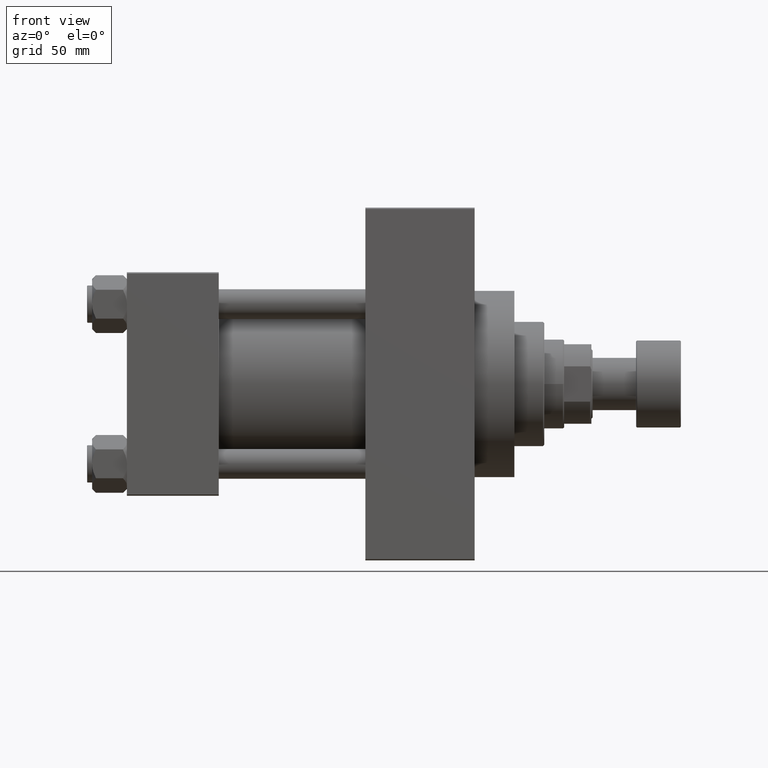
[diagram: clean part render]
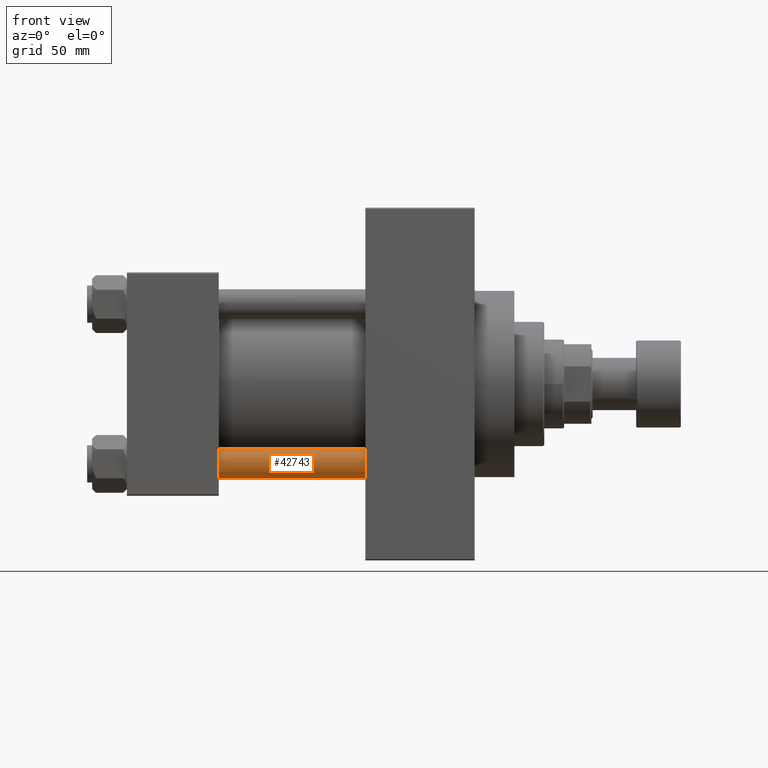
[diagram: same view with one face highlighted and labeled with its STEP entity id]
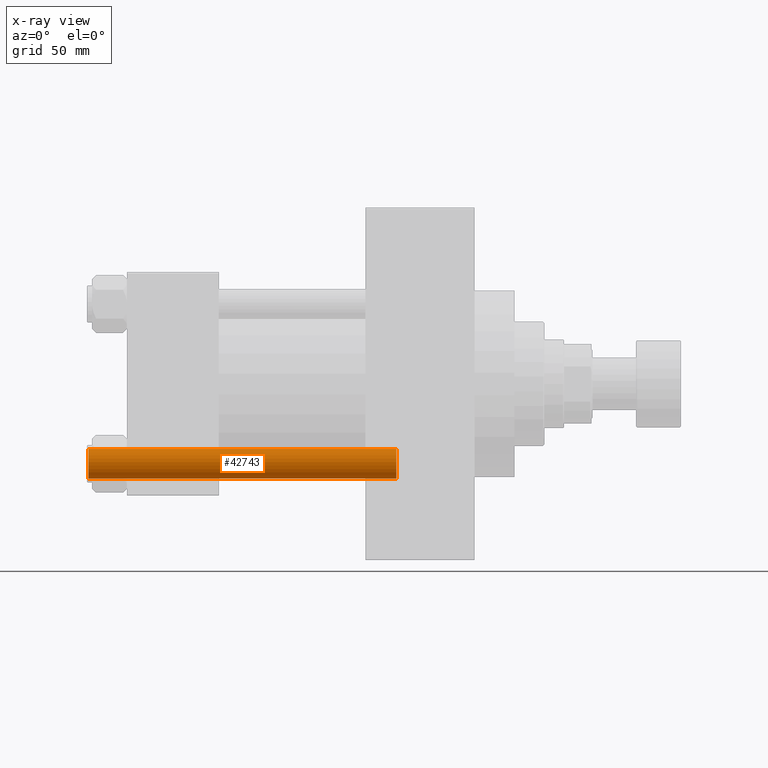
[diagram: x-ray of the same camera — body ghosted, the highlighted face saturated]
A machine part, front view. The second image highlights one B-rep face of the part: STEP entity #42743.
The next image is the same camera in x-ray: the body ghosted, the highlighted face saturated — about 0% of this face is hidden behind the body in this view.
In plain terms, the highlighted cylindrical surface (edge-blend (fillet) strip) has radius 6 mm, axis along (1, 0, 0).
Its self-contained STEP definition (entity closure, byte-faithful):
#2608 = LINE ( 'NONE', #45092, #45730 ) ;
#3727 = AXIS2_PLACEMENT_3D ( 'NONE', #36133, #5626, #36634 ) ;
#4865 = CARTESIAN_POINT ( 'NONE',  ( 6.000000000000000888, 7.347880794884120722E-16, 125.0000000000000000 ) ) ;
#5626 = DIRECTION ( 'NONE',  ( -0.000000000000000000, -0.000000000000000000, -1.000000000000000000 ) ) ;
#5688 = VERTEX_POINT ( 'NONE', #20762 ) ;
#6218 = EDGE_LOOP ( 'NONE', ( #20484, #21068, #31010, #33534 ) ) ;
#9339 = CARTESIAN_POINT ( 'NONE',  ( -6.000000000000000888, 0.000000000000000000, 124.5000000000000000 ) ) ;
#10840 = DIRECTION ( 'NONE',  ( -0.000000000000000000, -0.000000000000000000, -1.000000000000000000 ) ) ;
#13672 = EDGE_CURVE ( 'NONE', #5688, #37284, #32113, .T. ) ;
#16267 = DIRECTION ( 'NONE',  ( 0.000000000000000000, 0.000000000000000000, -1.000000000000000000 ) ) ;
#16523 = AXIS2_PLACEMENT_3D ( 'NONE', #35047, #16267, #31538 ) ;
#17691 = CARTESIAN_POINT ( 'NONE',  ( 6.000000000000000888, 7.347880794884120722E-16, 0.4999999999999865663 ) ) ;
#17873 = CYLINDRICAL_SURFACE ( 'NONE', #3727, 6.000000000000000888 ) ;
#20484 = ORIENTED_EDGE ( 'NONE', *, *, #43240, .T. ) ;
#20762 = CARTESIAN_POINT ( 'NONE',  ( 6.000000000000000888, 7.347880794884120722E-16, 124.5000000000000000 ) ) ;
#21068 = ORIENTED_EDGE ( 'NONE', *, *, #13672, .T. ) ;
#21222 = CIRCLE ( 'NONE', #40378, 6.000000000000000888 ) ;
#24484 = CARTESIAN_POINT ( 'NONE',  ( 0.000000000000000000, 0.000000000000000000, 0.4999999999999865663 ) ) ;
#25966 = VERTEX_POINT ( 'NONE', #29758 ) ;
#26938 = CIRCLE ( 'NONE', #16523, 6.000000000000000888 ) ;
#29758 = CARTESIAN_POINT ( 'NONE',  ( -6.000000000000000888, 0.000000000000000000, 0.4999999999999865663 ) ) ;
#31010 = ORIENTED_EDGE ( 'NONE', *, *, #40556, .T. ) ;
#31538 = DIRECTION ( 'NONE',  ( 1.000000000000000000, 0.000000000000000000, 0.000000000000000000 ) ) ;
#31880 = DIRECTION ( 'NONE',  ( -0.000000000000000000, -0.000000000000000000, -1.000000000000000000 ) ) ;
#32113 = LINE ( 'NONE', #4865, #47463 ) ;
#33534 = ORIENTED_EDGE ( 'NONE', *, *, #34039, .F. ) ;
#34039 = EDGE_CURVE ( 'NONE', #35685, #25966, #2608, .T. ) ;
#35047 = CARTESIAN_POINT ( 'NONE',  ( 0.000000000000000000, 0.000000000000000000, 124.5000000000000000 ) ) ;
#35251 = DIRECTION ( 'NONE',  ( 1.000000000000000000, 0.000000000000000000, 0.000000000000000000 ) ) ;
#35685 = VERTEX_POINT ( 'NONE', #9339 ) ;
#36133 = CARTESIAN_POINT ( 'NONE',  ( 0.000000000000000000, 0.000000000000000000, 125.0000000000000000 ) ) ;
#36634 = DIRECTION ( 'NONE',  ( -1.000000000000000000, 0.000000000000000000, 0.000000000000000000 ) ) ;
#36880 = FACE_OUTER_BOUND ( 'NONE', #6218, .T. ) ;
#37284 = VERTEX_POINT ( 'NONE', #17691 ) ;
#40378 = AXIS2_PLACEMENT_3D ( 'NONE', #24484, #42990, #35251 ) ;
#40556 = EDGE_CURVE ( 'NONE', #37284, #25966, #21222, .T. ) ;
#42743 = ADVANCED_FACE ( 'NONE', ( #36880 ), #17873, .T. ) ;
#42990 = DIRECTION ( 'NONE',  ( -0.000000000000000000, -0.000000000000000000, 1.000000000000000000 ) ) ;
#43240 = EDGE_CURVE ( 'NONE', #35685, #5688, #26938, .T. ) ;
#45092 = CARTESIAN_POINT ( 'NONE',  ( -6.000000000000000888, 0.000000000000000000, 125.0000000000000000 ) ) ;
#45730 = VECTOR ( 'NONE', #10840, 1000.000000000000000 ) ;
#47463 = VECTOR ( 'NONE', #31880, 1000.000000000000000 ) ;